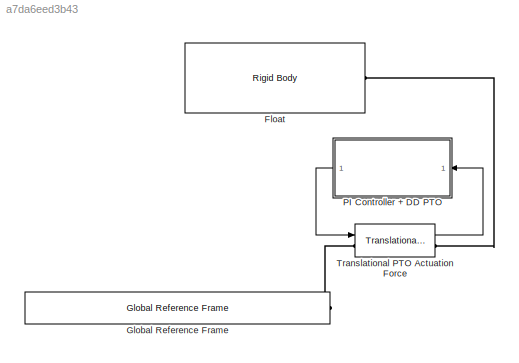
MODEL slx_a7da6eed3b43
KIND model
CONFIG AbsTol = auto
CONFIG EnableMultiTasking = on
CONFIG FixedStep = 0.01
CONFIG MaxStep = 0.01
CONFIG MinStep = auto
CONFIG RelTol = 1e-3
CONFIG SampleTimeConstraint = Unconstrained
CONFIG SolverName = ode45
CONFIG StartTime = 0
CONFIG StopTime = 200
BLOCK [Reference] Float  REF=WECSim_Lib_Body_Elements/Rigid Body
  AttributesFormatString = %<body>
  Ports = [0, 0, 0, 0, 0, 0, 1]
  SourceBlock = WECSim_Lib_Body_Elements/Rigid Body
  SourceType = Rigid Body
BLOCK [Reference] Global Reference Frame  REF=WECSim_Lib_Frames/Global Reference Frame
  Ports = [0, 0, 0, 0, 0, 0, 1]
  SourceBlock = WECSim_Lib_Frames/Global Reference Frame
  SourceType = Frames
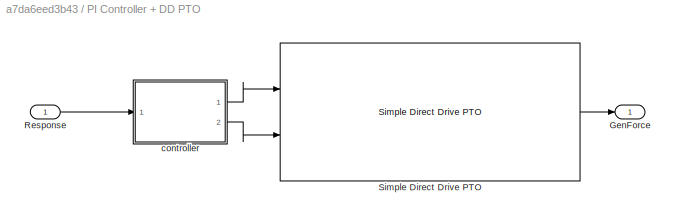
BLOCK [SubSystem] PI Controller + DD PTO 
  Ports = [1, 1]
BLOCK [Outport] PI Controller + DD PTO /GenForce
BLOCK [Inport] PI Controller + DD PTO /Response
BLOCK [Reference] PI Controller + DD PTO /Simple Direct Drive PTO  REF=WECSim_Lib_PTOSim/Electric/Simple Direct Drive PTO
  Ports = [2, 1]
  SourceBlock = WECSim_Lib_PTOSim/Electric/Simple Direct Drive PTO
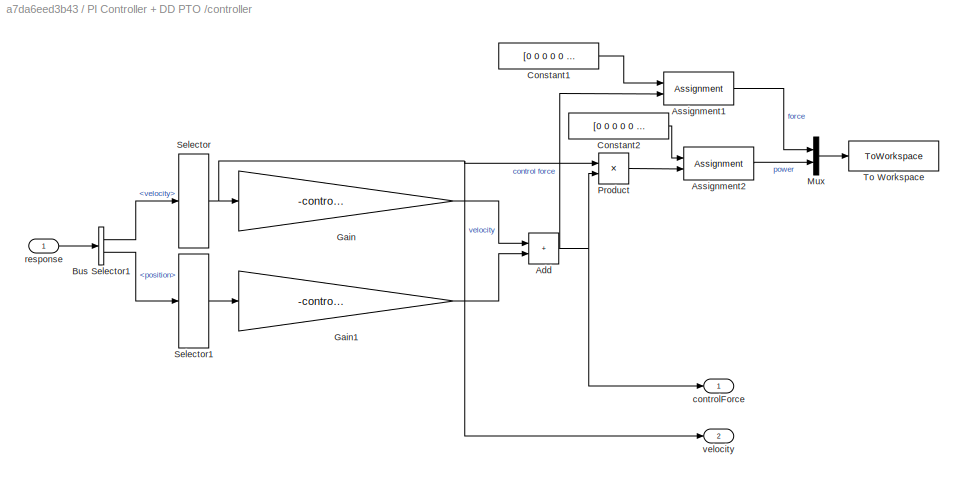
BLOCK [SubSystem] PI Controller + DD PTO /controller
  Ports = [1, 2]
BLOCK [Sum] PI Controller + DD PTO /controller/Add
  IconShape = rectangular
  Ports = [2, 1]
BLOCK [Assignment] PI Controller + DD PTO /controller/Assignment1
  IndexOptions = Index vector (dialog)
  Indices = 3
  OutputSizes = 1
  Ports = [2, 1]
BLOCK [Assignment] PI Controller + DD PTO /controller/Assignment2
  IndexOptions = Index vector (dialog)
  Indices = 3
  OutputSizes = 1
  Ports = [2, 1]
BLOCK [BusSelector] PI Controller + DD PTO /controller/Bus Selector1
  OutputSignals = velocity,position
  Ports = [1, 2]
BLOCK [Constant] PI Controller + DD PTO /controller/Constant1
  Value = [0 0 0 0 0 0]
BLOCK [Constant] PI Controller + DD PTO /controller/Constant2
  Value = [0 0 0 0 0 0]
BLOCK [Gain] PI Controller + DD PTO /controller/Gain
  Gain = -controller.proportionalIntegral.Kp
BLOCK [Gain] PI Controller + DD PTO /controller/Gain1
  Gain = -controller.proportionalIntegral.Ki
BLOCK [Mux] PI Controller + DD PTO /controller/Mux
  DisplayOption = bar
  Inputs = 2
  Ports = [2, 1]
BLOCK [Product] PI Controller + DD PTO /controller/Product
  Ports = [2, 1]
BLOCK [Selector] PI Controller + DD PTO /controller/Selector
  IndexOptions = Index vector (dialog)
  Indices = 3
  InputPortWidth = 6
  OutputSizes = 1
  Ports = [1, 1]
BLOCK [Selector] PI Controller + DD PTO /controller/Selector1
  IndexOptions = Index vector (dialog)
  Indices = 3
  InputPortWidth = 6
  OutputSizes = 1
  Ports = [1, 1]
BLOCK [ToWorkspace] PI Controller + DD PTO /controller/To Workspace
  FixptAsFi = on
  MaxDataPoints = inf
  Ports = [1]
  SampleTime = simu.dtOut
  SaveFormat = Structure With Time
  VariableName = controller1_out
BLOCK [Outport] PI Controller + DD PTO /controller/controlForce
BLOCK [Inport] PI Controller + DD PTO /controller/response
BLOCK [Outport] PI Controller + DD PTO /controller/velocity
  Port = 2
BLOCK [Reference] Translational PTO Actuation Force  REF=WECSim_Lib_PTOs/Translational PTO
Actuation Force
  AttributesFormatString = %<pto>
  Ports = [1, 1, 0, 0, 0, 1, 1]
  SourceBlock = WECSim_Lib_PTOs/Translational PTO\nActuation Force
  SourceType = PTO
LINE PI Controller + DD PTO /Response:1 -> PI Controller + DD PTO /controller:1
LINE PI Controller + DD PTO /Simple Direct Drive PTO:1 -> PI Controller + DD PTO /GenForce:1
NET PI Controller + DD PTO /controller/Add:1 -> PI Controller + DD PTO /controller/Assignment1:2, PI Controller + DD PTO /controller/Product:2, PI Controller + DD PTO /controller/controlForce:1
LINE PI Controller + DD PTO /controller/Assignment1:1 -> PI Controller + DD PTO /controller/Mux:1
LINE PI Controller + DD PTO /controller/Assignment2:1 -> PI Controller + DD PTO /controller/Mux:2
LINE PI Controller + DD PTO /controller/Bus Selector1:1 -> PI Controller + DD PTO /controller/Selector:1
LINE PI Controller + DD PTO /controller/Bus Selector1:2 -> PI Controller + DD PTO /controller/Selector1:1
LINE PI Controller + DD PTO /controller/Constant1:1 -> PI Controller + DD PTO /controller/Assignment1:1
LINE PI Controller + DD PTO /controller/Constant2:1 -> PI Controller + DD PTO /controller/Assignment2:1
LINE PI Controller + DD PTO /controller/Gain1:1 -> PI Controller + DD PTO /controller/Add:2
LINE PI Controller + DD PTO /controller/Gain:1 -> PI Controller + DD PTO /controller/Add:1
LINE PI Controller + DD PTO /controller/Mux:1 -> PI Controller + DD PTO /controller/To Workspace:1
LINE PI Controller + DD PTO /controller/Product:1 -> PI Controller + DD PTO /controller/Assignment2:2
LINE PI Controller + DD PTO /controller/Selector1:1 -> PI Controller + DD PTO /controller/Gain1:1
NET PI Controller + DD PTO /controller/Selector:1 -> PI Controller + DD PTO /controller/Gain:1, PI Controller + DD PTO /controller/Product:1, PI Controller + DD PTO /controller/velocity:1
LINE PI Controller + DD PTO /controller/response:1 -> PI Controller + DD PTO /controller/Bus Selector1:1
LINE PI Controller + DD PTO /controller:1 -> PI Controller + DD PTO /Simple Direct Drive PTO:1
LINE PI Controller + DD PTO /controller:2 -> PI Controller + DD PTO /Simple Direct Drive PTO:2
LINE PI Controller + DD PTO :1 -> Translational PTO Actuation Force:1
LINE Translational PTO Actuation Force:1 -> PI Controller + DD PTO :1
PLINE Float:RConn1 -- Translational PTO Actuation Force:RConn1
PLINE Global Reference Frame:RConn1 -- Translational PTO Actuation Force:LConn1
note: NET lines group one-source signal fan-out (src -> all destinations, sorted); 1:1 wires keep LINE
